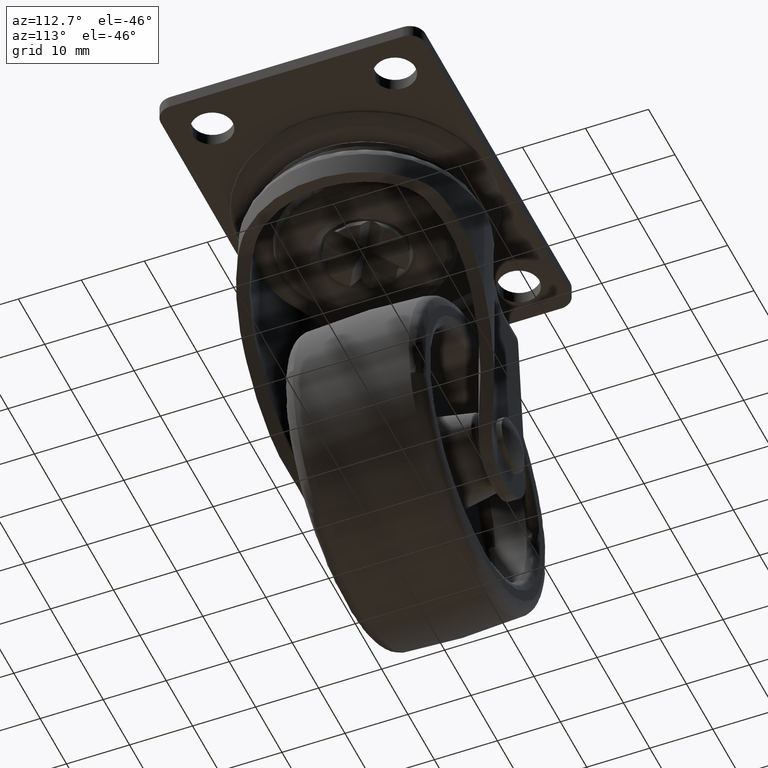
[diagram: clean part render]
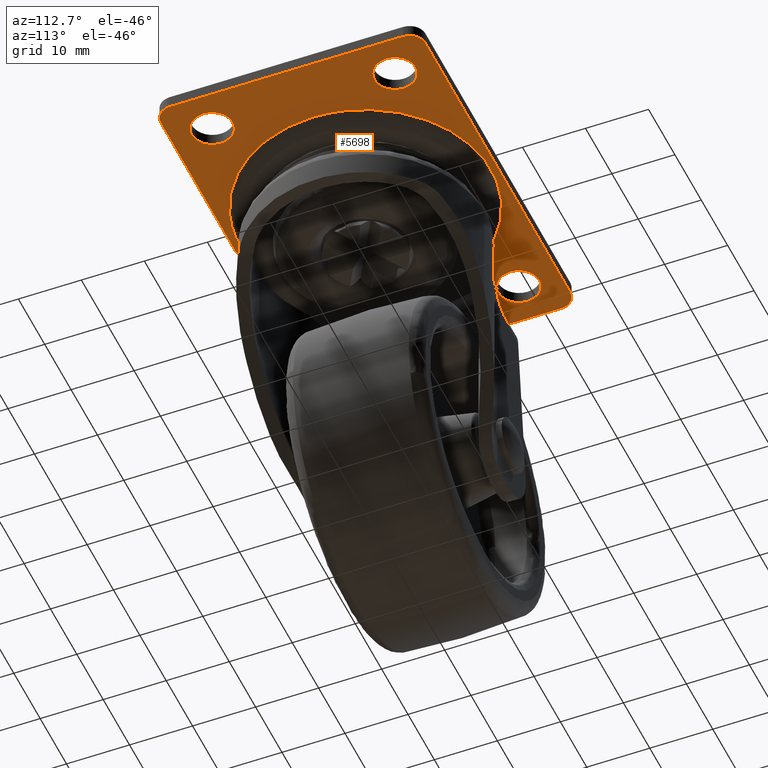
[diagram: same view with one face highlighted and labeled with its STEP entity id]
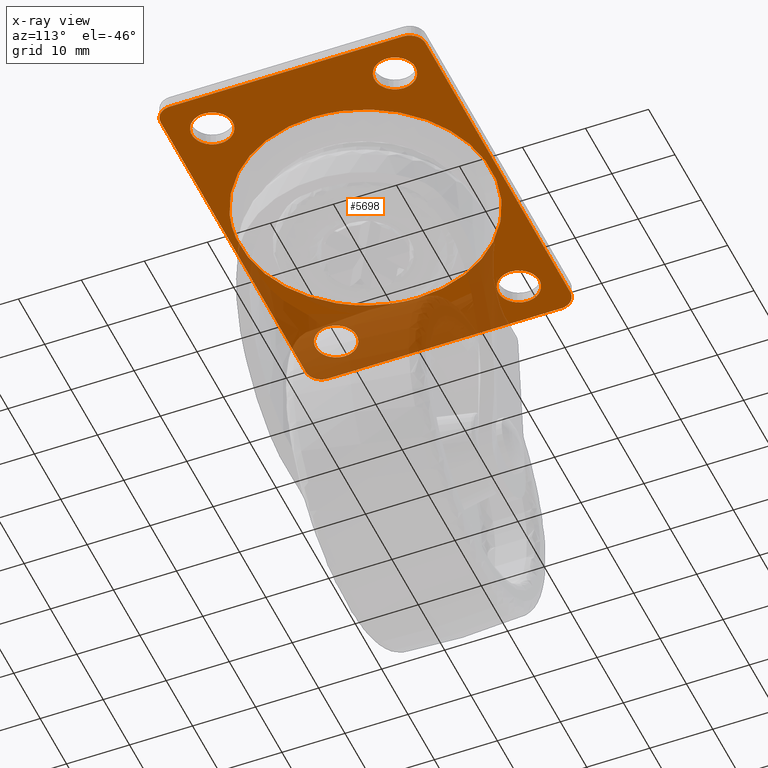
[diagram: x-ray of the same camera — body ghosted, the highlighted face saturated]
A machine part, auxiliary view. The second image highlights one B-rep face of the part: STEP entity #5698.
The next image is the same camera in x-ray: the body ghosted, the highlighted face saturated — about 32% of this face is hidden behind the body in this view.
In plain terms, the highlighted face is a freeform B-spline surface patch.
Its self-contained STEP definition (entity closure, byte-faithful):
#3433=CARTESIAN_POINT('',(-23.301599246302029,17.743938094858240,-1.999963000000160));
#3434=VERTEX_POINT('',#3433);
#3440=CARTESIAN_POINT('',(-20.250007000000000,14.500000000000000,-1.999963000000160));
#3441=VERTEX_POINT('',#3440);
#3442=CARTESIAN_POINT('',(-20.250007000000000,14.500000000000000,-1.999963000000160));
#3443=CARTESIAN_POINT('',(-20.250006999999997,17.557294717047544,-1.999963000000160));
#3444=CARTESIAN_POINT('',(-23.301599246302025,17.743938094858240,-1.999963000000160));
#3452=(BOUNDED_CURVE()B_SPLINE_CURVE(2,(#3442,#3443,#3444),.UNSPECIFIED.,.F.,.U.)B_SPLINE_CURVE_WITH_KNOTS((3,3),(0.500000000000000,0.739332962219663),.UNSPECIFIED.)CURVE()GEOMETRIC_REPRESENTATION_ITEM()RATIONAL_B_SPLINE_CURVE((1.0,0.719603993309298,0.976072041625397))REPRESENTATION_ITEM(''));
#3453=EDGE_CURVE('',#3441,#3434,#3452,.T.);
#3455=CARTESIAN_POINT('',(-23.883618262806088,11.272719039338490,-1.999963000000160));
#3456=VERTEX_POINT('',#3455);
#3457=CARTESIAN_POINT('',(-23.883618262806095,11.272719039338488,-1.999963000000160));
#3458=CARTESIAN_POINT('',(-23.692485389042147,11.250000000000005,-1.999963000000161));
#3459=CARTESIAN_POINT('',(-23.500007000000000,11.250000000000000,-1.999963000000160));
#3460=CARTESIAN_POINT('',(-20.250007000000007,11.250000000000000,-1.999963000000160));
#3461=CARTESIAN_POINT('',(-20.250007000000000,14.500000000000000,-1.999963000000160));
#3469=(BOUNDED_CURVE()B_SPLINE_CURVE(2,(#3457,#3458,#3459,#3460,#3461),.UNSPECIFIED.,.F.,.U.)B_SPLINE_CURVE_WITH_KNOTS((3,2,3),(0.229562473497670,0.250000000000000,0.500000000000000),.UNSPECIFIED.)CURVE()GEOMETRIC_REPRESENTATION_ITEM()RATIONAL_B_SPLINE_CURVE((0.956026754152655,0.976055948312589,1.0,0.707106781186547,1.0))REPRESENTATION_ITEM(''));
#3470=EDGE_CURVE('',#3456,#3441,#3469,.T.);
#3514=CARTESIAN_POINT('',(-26.750007000000000,14.500000000000000,-1.999963000000160));
#3515=VERTEX_POINT('',#3514);
#3516=CARTESIAN_POINT('',(-26.750007000000000,14.500000000000000,-1.999963000000160));
#3517=CARTESIAN_POINT('',(-26.750007000000000,11.613432790967220,-1.999963000000159));
#3518=CARTESIAN_POINT('',(-23.883618262806092,11.272719039338487,-1.999963000000160));
#3526=(BOUNDED_CURVE()B_SPLINE_CURVE(2,(#3516,#3517,#3518),.UNSPECIFIED.,.F.,.U.)B_SPLINE_CURVE_WITH_KNOTS((3,3),(0.0,0.229562473497670),.UNSPECIFIED.)CURVE()GEOMETRIC_REPRESENTATION_ITEM()RATIONAL_B_SPLINE_CURVE((1.0,0.731050832873958,0.956026754152655))REPRESENTATION_ITEM(''));
#3527=EDGE_CURVE('',#3515,#3456,#3526,.T.);
#3529=CARTESIAN_POINT('',(-23.301599246302032,17.743938094858247,-1.999963000000160));
#3530=CARTESIAN_POINT('',(-23.400710519069321,17.750000000000000,-1.999963000000160));
#3531=CARTESIAN_POINT('',(-23.500007000000000,17.750000000000000,-1.999963000000160));
#3532=CARTESIAN_POINT('',(-26.750006999999997,17.750000000000004,-1.999963000000160));
#3533=CARTESIAN_POINT('',(-26.750007000000000,14.500000000000000,-1.999963000000160));
#3541=(BOUNDED_CURVE()B_SPLINE_CURVE(2,(#3529,#3530,#3531,#3532,#3533),.UNSPECIFIED.,.F.,.U.)B_SPLINE_CURVE_WITH_KNOTS((3,2,3),(0.739332962219662,0.750000000000000,1.0),.UNSPECIFIED.)CURVE()GEOMETRIC_REPRESENTATION_ITEM()RATIONAL_B_SPLINE_CURVE((0.976072041625395,0.987502787877249,1.0,0.707106781186547,1.0))REPRESENTATION_ITEM(''));
#3542=EDGE_CURVE('',#3434,#3515,#3541,.T.);
#3619=CARTESIAN_POINT('',(23.698400753697971,17.743938094858240,-1.999963000000160));
#3620=VERTEX_POINT('',#3619);
#3626=CARTESIAN_POINT('',(26.749993000000000,14.500000000000000,-1.999963000000160));
#3627=VERTEX_POINT('',#3626);
#3628=CARTESIAN_POINT('',(26.749993000000000,14.500000000000000,-1.999963000000160));
#3629=CARTESIAN_POINT('',(26.749993000000007,17.557294717047544,-1.999963000000160));
#3630=CARTESIAN_POINT('',(23.698400753697964,17.743938094858240,-1.999963000000160));
#3638=(BOUNDED_CURVE()B_SPLINE_CURVE(2,(#3628,#3629,#3630),.UNSPECIFIED.,.F.,.U.)B_SPLINE_CURVE_WITH_KNOTS((3,3),(0.500000000000000,0.739332962219663),.UNSPECIFIED.)CURVE()GEOMETRIC_REPRESENTATION_ITEM()RATIONAL_B_SPLINE_CURVE((1.0,0.719603993309298,0.976072041625397))REPRESENTATION_ITEM(''));
#3639=EDGE_CURVE('',#3627,#3620,#3638,.T.);
#3641=CARTESIAN_POINT('',(23.116381737193912,11.272719039338490,-1.999963000000160));
#3642=VERTEX_POINT('',#3641);
#3643=CARTESIAN_POINT('',(23.116381737193912,11.272719039338481,-1.999963000000160));
#3644=CARTESIAN_POINT('',(23.307514610957856,11.250000000000005,-1.999963000000160));
#3645=CARTESIAN_POINT('',(23.499993000000000,11.250000000000000,-1.999963000000160));
#3646=CARTESIAN_POINT('',(26.749993000000003,11.250000000000000,-1.999963000000160));
#3647=CARTESIAN_POINT('',(26.749993000000000,14.500000000000000,-1.999963000000160));
#3655=(BOUNDED_CURVE()B_SPLINE_CURVE(2,(#3643,#3644,#3645,#3646,#3647),.UNSPECIFIED.,.F.,.U.)B_SPLINE_CURVE_WITH_KNOTS((3,2,3),(0.229562473497670,0.250000000000000,0.500000000000000),.UNSPECIFIED.)CURVE()GEOMETRIC_REPRESENTATION_ITEM()RATIONAL_B_SPLINE_CURVE((0.956026754152655,0.976055948312589,1.0,0.707106781186547,1.0))REPRESENTATION_ITEM(''));
#3656=EDGE_CURVE('',#3642,#3627,#3655,.T.);
#3700=CARTESIAN_POINT('',(20.249993000000000,14.500000000000000,-1.999963000000160));
#3701=VERTEX_POINT('',#3700);
#3702=CARTESIAN_POINT('',(20.249993000000000,14.500000000000000,-1.999963000000160));
#3703=CARTESIAN_POINT('',(20.249993000000000,11.613432790967222,-1.999963000000161));
#3704=CARTESIAN_POINT('',(23.116381737193908,11.272719039338481,-1.999963000000160));
#3712=(BOUNDED_CURVE()B_SPLINE_CURVE(2,(#3702,#3703,#3704),.UNSPECIFIED.,.F.,.U.)B_SPLINE_CURVE_WITH_KNOTS((3,3),(0.0,0.229562473497670),.UNSPECIFIED.)CURVE()GEOMETRIC_REPRESENTATION_ITEM()RATIONAL_B_SPLINE_CURVE((1.0,0.731050832873959,0.956026754152655))REPRESENTATION_ITEM(''));
#3713=EDGE_CURVE('',#3701,#3642,#3712,.T.);
#3715=CARTESIAN_POINT('',(23.698400753697964,17.743938094858247,-1.999963000000160));
#3716=CARTESIAN_POINT('',(23.599289480930686,17.750000000000000,-1.999963000000160));
#3717=CARTESIAN_POINT('',(23.499993000000000,17.750000000000000,-1.999963000000160));
#3718=CARTESIAN_POINT('',(20.249993000000003,17.750000000000004,-1.999963000000160));
#3719=CARTESIAN_POINT('',(20.249993000000000,14.500000000000000,-1.999963000000160));
#3727=(BOUNDED_CURVE()B_SPLINE_CURVE(2,(#3715,#3716,#3717,#3718,#3719),.UNSPECIFIED.,.F.,.U.)B_SPLINE_CURVE_WITH_KNOTS((3,2,3),(0.739332962219662,0.750000000000000,1.0),.UNSPECIFIED.)CURVE()GEOMETRIC_REPRESENTATION_ITEM()RATIONAL_B_SPLINE_CURVE((0.976072041625395,0.987502787877249,1.0,0.707106781186547,1.0))REPRESENTATION_ITEM(''));
#3728=EDGE_CURVE('',#3620,#3701,#3727,.T.);
#3805=CARTESIAN_POINT('',(23.698400753697971,-11.256061905141760,-1.999963000000160));
#3806=VERTEX_POINT('',#3805);
#3812=CARTESIAN_POINT('',(26.749993000000000,-14.500000000000000,-1.999963000000160));
#3813=VERTEX_POINT('',#3812);
#3814=CARTESIAN_POINT('',(26.749993000000000,-14.500000000000000,-1.999963000000160));
#3815=CARTESIAN_POINT('',(26.749993000000007,-11.442705282952456,-1.999963000000160));
#3816=CARTESIAN_POINT('',(23.698400753697964,-11.256061905141761,-1.999963000000160));
#3824=(BOUNDED_CURVE()B_SPLINE_CURVE(2,(#3814,#3815,#3816),.UNSPECIFIED.,.F.,.U.)B_SPLINE_CURVE_WITH_KNOTS((3,3),(0.500000000000000,0.739332962219663),.UNSPECIFIED.)CURVE()GEOMETRIC_REPRESENTATION_ITEM()RATIONAL_B_SPLINE_CURVE((1.0,0.719603993309298,0.976072041625397))REPRESENTATION_ITEM(''));
#3825=EDGE_CURVE('',#3813,#3806,#3824,.T.);
#3827=CARTESIAN_POINT('',(23.116381737193912,-17.727280960661520,-1.999963000000160));
#3828=VERTEX_POINT('',#3827);
#3829=CARTESIAN_POINT('',(23.116381737193912,-17.727280960661513,-1.999963000000161));
#3830=CARTESIAN_POINT('',(23.307514610957860,-17.750000000000000,-1.999963000000160));
#3831=CARTESIAN_POINT('',(23.499993000000000,-17.750000000000000,-1.999963000000160));
#3832=CARTESIAN_POINT('',(26.749993000000003,-17.750000000000004,-1.999963000000160));
#3833=CARTESIAN_POINT('',(26.749993000000000,-14.500000000000000,-1.999963000000160));
#3841=(BOUNDED_CURVE()B_SPLINE_CURVE(2,(#3829,#3830,#3831,#3832,#3833),.UNSPECIFIED.,.F.,.U.)B_SPLINE_CURVE_WITH_KNOTS((3,2,3),(0.229562473497670,0.250000000000000,0.500000000000000),.UNSPECIFIED.)CURVE()GEOMETRIC_REPRESENTATION_ITEM()RATIONAL_B_SPLINE_CURVE((0.956026754152655,0.976055948312589,1.0,0.707106781186547,1.0))REPRESENTATION_ITEM(''));
#3842=EDGE_CURVE('',#3828,#3813,#3841,.T.);
#3886=CARTESIAN_POINT('',(20.249993000000000,-14.500000000000000,-1.999963000000160));
#3887=VERTEX_POINT('',#3886);
#3888=CARTESIAN_POINT('',(20.249993000000000,-14.500000000000000,-1.999963000000160));
#3889=CARTESIAN_POINT('',(20.249993000000003,-17.386567209032769,-1.999963000000161));
#3890=CARTESIAN_POINT('',(23.116381737193908,-17.727280960661520,-1.999963000000160));
#3898=(BOUNDED_CURVE()B_SPLINE_CURVE(2,(#3888,#3889,#3890),.UNSPECIFIED.,.F.,.U.)B_SPLINE_CURVE_WITH_KNOTS((3,3),(0.0,0.229562473497669),.UNSPECIFIED.)CURVE()GEOMETRIC_REPRESENTATION_ITEM()RATIONAL_B_SPLINE_CURVE((1.0,0.731050832873959,0.956026754152654))REPRESENTATION_ITEM(''));
#3899=EDGE_CURVE('',#3887,#3828,#3898,.T.);
#3901=CARTESIAN_POINT('',(23.698400753697964,-11.256061905141763,-1.999963000000160));
#3902=CARTESIAN_POINT('',(23.599289480930686,-11.250000000000004,-1.999963000000160));
#3903=CARTESIAN_POINT('',(23.499993000000000,-11.250000000000000,-1.999963000000160));
#3904=CARTESIAN_POINT('',(20.249993000000003,-11.250000000000000,-1.999963000000160));
#3905=CARTESIAN_POINT('',(20.249993000000000,-14.500000000000000,-1.999963000000160));
#3913=(BOUNDED_CURVE()B_SPLINE_CURVE(2,(#3901,#3902,#3903,#3904,#3905),.UNSPECIFIED.,.F.,.U.)B_SPLINE_CURVE_WITH_KNOTS((3,2,3),(0.739332962219662,0.750000000000000,1.0),.UNSPECIFIED.)CURVE()GEOMETRIC_REPRESENTATION_ITEM()RATIONAL_B_SPLINE_CURVE((0.976072041625395,0.987502787877249,1.0,0.707106781186547,1.0))REPRESENTATION_ITEM(''));
#3914=EDGE_CURVE('',#3806,#3887,#3913,.T.);
#3991=CARTESIAN_POINT('',(-23.301599246302029,-11.256061905141760,-1.999963000000160));
#3992=VERTEX_POINT('',#3991);
#3998=CARTESIAN_POINT('',(-20.250007000000000,-14.500000000000000,-1.999963000000160));
#3999=VERTEX_POINT('',#3998);
#4000=CARTESIAN_POINT('',(-20.250007000000000,-14.500000000000000,-1.999963000000160));
#4001=CARTESIAN_POINT('',(-20.250006999999997,-11.442705282952456,-1.999963000000160));
#4002=CARTESIAN_POINT('',(-23.301599246302025,-11.256061905141761,-1.999963000000160));
#4010=(BOUNDED_CURVE()B_SPLINE_CURVE(2,(#4000,#4001,#4002),.UNSPECIFIED.,.F.,.U.)B_SPLINE_CURVE_WITH_KNOTS((3,3),(0.500000000000000,0.739332962219663),.UNSPECIFIED.)CURVE()GEOMETRIC_REPRESENTATION_ITEM()RATIONAL_B_SPLINE_CURVE((1.0,0.719603993309298,0.976072041625397))REPRESENTATION_ITEM(''));
#4011=EDGE_CURVE('',#3999,#3992,#4010,.T.);
#4013=CARTESIAN_POINT('',(-23.883618262806088,-17.727280960661520,-1.999963000000160));
#4014=VERTEX_POINT('',#4013);
#4015=CARTESIAN_POINT('',(-23.883618262806092,-17.727280960661513,-1.999963000000161));
#4016=CARTESIAN_POINT('',(-23.692485389042140,-17.750000000000007,-1.999963000000160));
#4017=CARTESIAN_POINT('',(-23.500007000000000,-17.750000000000000,-1.999963000000160));
#4018=CARTESIAN_POINT('',(-20.250007000000007,-17.750000000000004,-1.999963000000160));
#4019=CARTESIAN_POINT('',(-20.250007000000000,-14.500000000000000,-1.999963000000160));
#4027=(BOUNDED_CURVE()B_SPLINE_CURVE(2,(#4015,#4016,#4017,#4018,#4019),.UNSPECIFIED.,.F.,.U.)B_SPLINE_CURVE_WITH_KNOTS((3,2,3),(0.229562473497670,0.250000000000000,0.500000000000000),.UNSPECIFIED.)CURVE()GEOMETRIC_REPRESENTATION_ITEM()RATIONAL_B_SPLINE_CURVE((0.956026754152655,0.976055948312589,1.0,0.707106781186547,1.0))REPRESENTATION_ITEM(''));
#4028=EDGE_CURVE('',#4014,#3999,#4027,.T.);
#4072=CARTESIAN_POINT('',(-26.750007000000000,-14.500000000000000,-1.999963000000160));
#4073=VERTEX_POINT('',#4072);
#4074=CARTESIAN_POINT('',(-26.750007000000000,-14.500000000000000,-1.999963000000160));
#4075=CARTESIAN_POINT('',(-26.750006999999997,-17.386567209032780,-1.999963000000161));
#4076=CARTESIAN_POINT('',(-23.883618262806088,-17.727280960661520,-1.999963000000160));
#4084=(BOUNDED_CURVE()B_SPLINE_CURVE(2,(#4074,#4075,#4076),.UNSPECIFIED.,.F.,.U.)B_SPLINE_CURVE_WITH_KNOTS((3,3),(0.0,0.229562473497670),.UNSPECIFIED.)CURVE()GEOMETRIC_REPRESENTATION_ITEM()RATIONAL_B_SPLINE_CURVE((1.0,0.731050832873959,0.956026754152655))REPRESENTATION_ITEM(''));
#4085=EDGE_CURVE('',#4073,#4014,#4084,.T.);
#4087=CARTESIAN_POINT('',(-23.301599246302032,-11.256061905141763,-1.999963000000160));
#4088=CARTESIAN_POINT('',(-23.400710519069321,-11.250000000000004,-1.999963000000160));
#4089=CARTESIAN_POINT('',(-23.500007000000000,-11.250000000000000,-1.999963000000160));
#4090=CARTESIAN_POINT('',(-26.750006999999997,-11.250000000000000,-1.999963000000160));
#4091=CARTESIAN_POINT('',(-26.750007000000000,-14.500000000000000,-1.999963000000160));
#4099=(BOUNDED_CURVE()B_SPLINE_CURVE(2,(#4087,#4088,#4089,#4090,#4091),.UNSPECIFIED.,.F.,.U.)B_SPLINE_CURVE_WITH_KNOTS((3,2,3),(0.739332962219662,0.750000000000000,1.0),.UNSPECIFIED.)CURVE()GEOMETRIC_REPRESENTATION_ITEM()RATIONAL_B_SPLINE_CURVE((0.976072041625395,0.987502787877249,1.0,0.707106781186547,1.0))REPRESENTATION_ITEM(''));
#4100=EDGE_CURVE('',#3992,#4073,#4099,.T.);
#4154=CARTESIAN_POINT('',(1.565546433917364,-19.892153513087582,-1.999962999997074));
#4155=VERTEX_POINT('',#4154);
#4161=CARTESIAN_POINT('',(-18.554202197743809,-7.341000465215588,-1.999962999995003));
#4162=VERTEX_POINT('',#4161);
#4163=CARTESIAN_POINT('',(1.565546433917364,-19.892153513087582,-1.999962999997073));
#4164=CARTESIAN_POINT('',(0.783981593775094,-19.953664000000099,-1.999963000000206));
#4165=CARTESIAN_POINT('',(0.0,-19.953664000000089,-1.999963000000205));
#4166=CARTESIAN_POINT('',(-13.563981228371970,-19.953664000000096,-1.999963000000205));
#4167=CARTESIAN_POINT('',(-18.554202197743813,-7.341000465215588,-1.999962999995004));
#4175=(BOUNDED_CURVE()B_SPLINE_CURVE(2,(#4163,#4164,#4165,#4166,#4167),.UNSPECIFIED.,.F.,.U.)B_SPLINE_CURVE_WITH_KNOTS((3,2,3),(0.736331300632424,0.750000000000000,0.937532549938757),.UNSPECIFIED.)CURVE()GEOMETRIC_REPRESENTATION_ITEM()RATIONAL_B_SPLINE_CURVE((0.969723356171099,0.983986122580949,1.0,0.780291951264572,0.890203187500532))REPRESENTATION_ITEM(''));
#4176=EDGE_CURVE('',#4155,#4162,#4175,.T.);
#4228=CARTESIAN_POINT('',(-19.953664000000099,7.105427E-015,-1.999963000000205));
#4229=VERTEX_POINT('',#4228);
#4230=CARTESIAN_POINT('',(-18.554202197743809,-7.341000465215588,-1.999962999995003));
#4231=CARTESIAN_POINT('',(-19.953664000000103,-3.803894403170378,-1.999963000000205));
#4232=CARTESIAN_POINT('',(-19.953664000000099,7.105427E-015,-1.999963000000205));
#4240=(BOUNDED_CURVE()B_SPLINE_CURVE(2,(#4230,#4231,#4232),.UNSPECIFIED.,.F.,.U.)B_SPLINE_CURVE_WITH_KNOTS((3,3),(0.937532549938758,1.0),.UNSPECIFIED.)CURVE()GEOMETRIC_REPRESENTATION_ITEM()RATIONAL_B_SPLINE_CURVE((0.890203187500533,0.926814829921977,1.0))REPRESENTATION_ITEM(''));
#4241=EDGE_CURVE('',#4162,#4229,#4240,.T.);
#4243=CARTESIAN_POINT('',(19.953664000000099,7.105427E-015,-1.999963000000205));
#4244=VERTEX_POINT('',#4243);
#4245=CARTESIAN_POINT('',(-19.953664000000099,7.105427E-015,-1.999963000000205));
#4246=CARTESIAN_POINT('',(-19.953664000000099,19.953664000000114,-1.999963000000205));
#4247=CARTESIAN_POINT('',(0.0,19.953664000000110,-1.999963000000205));
#4248=CARTESIAN_POINT('',(19.953664000000099,19.953664000000114,-1.999963000000205));
#4249=CARTESIAN_POINT('',(19.953664000000099,7.105427E-015,-1.999963000000205));
#4257=(BOUNDED_CURVE()B_SPLINE_CURVE(2,(#4245,#4246,#4247,#4248,#4249),.UNSPECIFIED.,.F.,.U.)B_SPLINE_CURVE_WITH_KNOTS((3,2,3),(0.0,0.250000000000000,0.500000000000000),.UNSPECIFIED.)CURVE()GEOMETRIC_REPRESENTATION_ITEM()RATIONAL_B_SPLINE_CURVE((1.0,0.707106781186547,1.0,0.707106781186547,1.0))REPRESENTATION_ITEM(''));
#4258=EDGE_CURVE('',#4229,#4244,#4257,.T.);
#4260=CARTESIAN_POINT('',(19.953664000000099,7.105427E-015,-1.999963000000205));
#4261=CARTESIAN_POINT('',(19.953664000000103,-18.444977275305753,-1.999963000000204));
#4262=CARTESIAN_POINT('',(1.565546433917364,-19.892153513087582,-1.999962999997074));
#4270=(BOUNDED_CURVE()B_SPLINE_CURVE(2,(#4260,#4261,#4262),.UNSPECIFIED.,.F.,.U.)B_SPLINE_CURVE_WITH_KNOTS((3,3),(0.500000000000000,0.736331300632424),.UNSPECIFIED.)CURVE()GEOMETRIC_REPRESENTATION_ITEM()RATIONAL_B_SPLINE_CURVE((1.0,0.723120658605598,0.969723356171100))REPRESENTATION_ITEM(''));
#4271=EDGE_CURVE('',#4244,#4155,#4270,.T.);
#5573=CARTESIAN_POINT('',(-32.997008010182597,23.097899918595861,-1.999963000000205));
#5574=CARTESIAN_POINT('',(32.996994546624308,23.097899918595861,-1.999963000000205));
#5575=CARTESIAN_POINT('',(-32.997008010182597,-23.097901045123638,-1.999963000000205));
#5576=CARTESIAN_POINT('',(32.996994546624308,-23.097901045123638,-1.999963000000205));
#5577=B_SPLINE_SURFACE_WITH_KNOTS('',1,1,((#5573,#5575),(#5574,#5576)),.UNSPECIFIED.,.F.,.F.,.U.,(2,2),(2,2),(0.0,65.994002556806919),(0.0,46.195800963719492),.UNSPECIFIED.);
#5578=CARTESIAN_POINT('',(29.999993000000000,18.500000000000000,-1.999963000000160));
#5579=VERTEX_POINT('',#5578);
#5580=CARTESIAN_POINT('',(27.499993000000000,21.0,-1.999963000000160));
#5581=VERTEX_POINT('',#5580);
#5582=CARTESIAN_POINT('',(29.999993000000000,18.500000000000000,-1.999963000000160));
#5583=CARTESIAN_POINT('',(29.999993000000000,21.000000000000004,-1.999963000000159));
#5584=CARTESIAN_POINT('',(27.499993000000000,21.0,-1.999963000000160));
#5592=(BOUNDED_CURVE()B_SPLINE_CURVE(2,(#5582,#5583,#5584),.UNSPECIFIED.,.F.,.U.)CURVE()GEOMETRIC_REPRESENTATION_ITEM()QUASI_UNIFORM_CURVE()RATIONAL_B_SPLINE_CURVE((1.0,0.707106781186548,1.0))REPRESENTATION_ITEM(''));
#5593=EDGE_CURVE('',#5579,#5581,#5592,.T.);
#5594=ORIENTED_EDGE('',*,*,#5593,.F.);
#5595=CARTESIAN_POINT('',(29.999993000000000,-18.500000000000000,-1.999963000000160));
#5596=VERTEX_POINT('',#5595);
#5597=CARTESIAN_POINT('',(29.999993000000000,-18.500000000000000,-1.999963000000160));
#5598=CARTESIAN_POINT('',(29.999993000000000,18.500000000000000,-1.999963000000160));
#5599=QUASI_UNIFORM_CURVE('',1,(#5597,#5598),.UNSPECIFIED.,.F.,.U.);
#5600=EDGE_CURVE('',#5596,#5579,#5599,.T.);
#5601=ORIENTED_EDGE('',*,*,#5600,.F.);
#5602=CARTESIAN_POINT('',(27.499993000000000,-21.0,-1.999963000000160));
#5603=VERTEX_POINT('',#5602);
#5604=CARTESIAN_POINT('',(27.499993000000000,-21.0,-1.999963000000160));
#5605=CARTESIAN_POINT('',(29.999993000000000,-21.000000000000004,-1.999963000000159));
#5606=CARTESIAN_POINT('',(29.999993000000000,-18.500000000000000,-1.999963000000160));
#5614=(BOUNDED_CURVE()B_SPLINE_CURVE(2,(#5604,#5605,#5606),.UNSPECIFIED.,.F.,.U.)CURVE()GEOMETRIC_REPRESENTATION_ITEM()QUASI_UNIFORM_CURVE()RATIONAL_B_SPLINE_CURVE((1.0,0.707106781186548,1.0))REPRESENTATION_ITEM(''));
#5615=EDGE_CURVE('',#5603,#5596,#5614,.T.);
#5616=ORIENTED_EDGE('',*,*,#5615,.F.);
#5617=CARTESIAN_POINT('',(-27.500007000000100,-21.0,-1.999963000000160));
#5618=VERTEX_POINT('',#5617);
#5619=CARTESIAN_POINT('',(-27.500007000000100,-21.0,-1.999963000000160));
#5620=CARTESIAN_POINT('',(27.499993000000000,-21.0,-1.999963000000160));
#5621=QUASI_UNIFORM_CURVE('',1,(#5619,#5620),.UNSPECIFIED.,.F.,.U.);
#5622=EDGE_CURVE('',#5618,#5603,#5621,.T.);
#5623=ORIENTED_EDGE('',*,*,#5622,.F.);
#5624=CARTESIAN_POINT('',(-30.000007000000000,-18.500000000000000,-1.999963000000160));
#5625=VERTEX_POINT('',#5624);
#5626=CARTESIAN_POINT('',(-30.000007000000100,-18.500000000000000,-1.999963000000160));
#5627=CARTESIAN_POINT('',(-30.000007000000107,-21.000000000000004,-1.999963000000159));
#5628=CARTESIAN_POINT('',(-27.500007000000100,-21.0,-1.999963000000160));
#5636=(BOUNDED_CURVE()B_SPLINE_CURVE(2,(#5626,#5627,#5628),.UNSPECIFIED.,.F.,.U.)CURVE()GEOMETRIC_REPRESENTATION_ITEM()QUASI_UNIFORM_CURVE()RATIONAL_B_SPLINE_CURVE((1.0,0.707106781186548,1.0))REPRESENTATION_ITEM(''));
#5637=EDGE_CURVE('',#5625,#5618,#5636,.T.);
#5638=ORIENTED_EDGE('',*,*,#5637,.F.);
#5639=CARTESIAN_POINT('',(-30.000007000000100,18.500000000000000,-1.999963000000160));
#5640=VERTEX_POINT('',#5639);
#5641=CARTESIAN_POINT('',(-30.000007000000100,18.500000000000000,-1.999963000000160));
#5642=CARTESIAN_POINT('',(-30.000007000000000,-18.500000000000000,-1.999963000000160));
#5643=QUASI_UNIFORM_CURVE('',1,(#5641,#5642),.UNSPECIFIED.,.F.,.U.);
#5644=EDGE_CURVE('',#5640,#5625,#5643,.T.);
#5645=ORIENTED_EDGE('',*,*,#5644,.F.);
#5646=CARTESIAN_POINT('',(-27.500007000000100,21.0,-1.999963000000160));
#5647=VERTEX_POINT('',#5646);
#5648=CARTESIAN_POINT('',(-27.500007000000100,21.0,-1.999963000000160));
#5649=CARTESIAN_POINT('',(-30.000007000000107,21.000000000000004,-1.999963000000159));
#5650=CARTESIAN_POINT('',(-30.000007000000100,18.500000000000000,-1.999963000000160));
#5658=(BOUNDED_CURVE()B_SPLINE_CURVE(2,(#5648,#5649,#5650),.UNSPECIFIED.,.F.,.U.)CURVE()GEOMETRIC_REPRESENTATION_ITEM()QUASI_UNIFORM_CURVE()RATIONAL_B_SPLINE_CURVE((1.0,0.707106781186548,1.0))REPRESENTATION_ITEM(''));
#5659=EDGE_CURVE('',#5647,#5640,#5658,.T.);
#5660=ORIENTED_EDGE('',*,*,#5659,.F.);
#5661=CARTESIAN_POINT('',(27.499993000000000,21.0,-1.999963000000160));
#5662=CARTESIAN_POINT('',(-27.500007000000100,21.0,-1.999963000000160));
#5663=QUASI_UNIFORM_CURVE('',1,(#5661,#5662),.UNSPECIFIED.,.F.,.U.);
#5664=EDGE_CURVE('',#5581,#5647,#5663,.T.);
#5665=ORIENTED_EDGE('',*,*,#5664,.F.);
#5666=EDGE_LOOP('',(#5594,#5601,#5616,#5623,#5638,#5645,#5660,#5665));
#5667=FACE_OUTER_BOUND('',#5666,.T.);
#5668=ORIENTED_EDGE('',*,*,#4258,.F.);
#5669=ORIENTED_EDGE('',*,*,#4241,.F.);
#5670=ORIENTED_EDGE('',*,*,#4176,.F.);
#5671=ORIENTED_EDGE('',*,*,#4271,.F.);
#5672=EDGE_LOOP('',(#5668,#5669,#5670,#5671));
#5673=FACE_BOUND('',#5672,.T.);
#5674=ORIENTED_EDGE('',*,*,#4011,.T.);
#5675=ORIENTED_EDGE('',*,*,#4100,.T.);
#5676=ORIENTED_EDGE('',*,*,#4085,.T.);
#5677=ORIENTED_EDGE('',*,*,#4028,.T.);
#5678=EDGE_LOOP('',(#5674,#5675,#5676,#5677));
#5679=FACE_BOUND('',#5678,.T.);
#5680=ORIENTED_EDGE('',*,*,#3825,.T.);
#5681=ORIENTED_EDGE('',*,*,#3914,.T.);
#5682=ORIENTED_EDGE('',*,*,#3899,.T.);
#5683=ORIENTED_EDGE('',*,*,#3842,.T.);
#5684=EDGE_LOOP('',(#5680,#5681,#5682,#5683));
#5685=FACE_BOUND('',#5684,.T.);
#5686=ORIENTED_EDGE('',*,*,#3639,.T.);
#5687=ORIENTED_EDGE('',*,*,#3728,.T.);
#5688=ORIENTED_EDGE('',*,*,#3713,.T.);
#5689=ORIENTED_EDGE('',*,*,#3656,.T.);
#5690=EDGE_LOOP('',(#5686,#5687,#5688,#5689));
#5691=FACE_BOUND('',#5690,.T.);
#5692=ORIENTED_EDGE('',*,*,#3453,.T.);
#5693=ORIENTED_EDGE('',*,*,#3542,.T.);
#5694=ORIENTED_EDGE('',*,*,#3527,.T.);
#5695=ORIENTED_EDGE('',*,*,#3470,.T.);
#5696=EDGE_LOOP('',(#5692,#5693,#5694,#5695));
#5697=FACE_BOUND('',#5696,.T.);
#5698=ADVANCED_FACE('',(#5667,#5673,#5679,#5685,#5691,#5697),#5577,.T.);